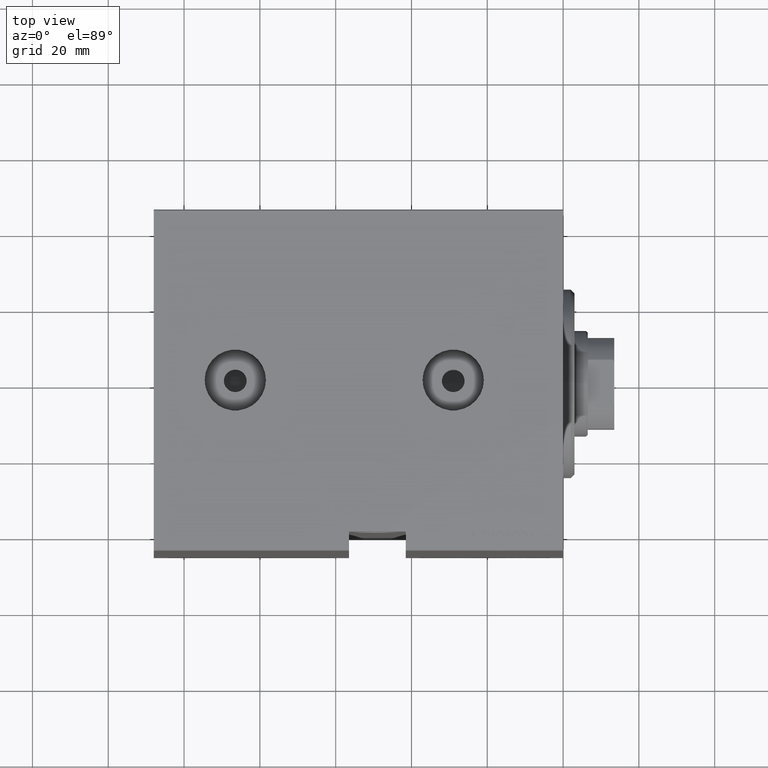
[diagram: clean part render]
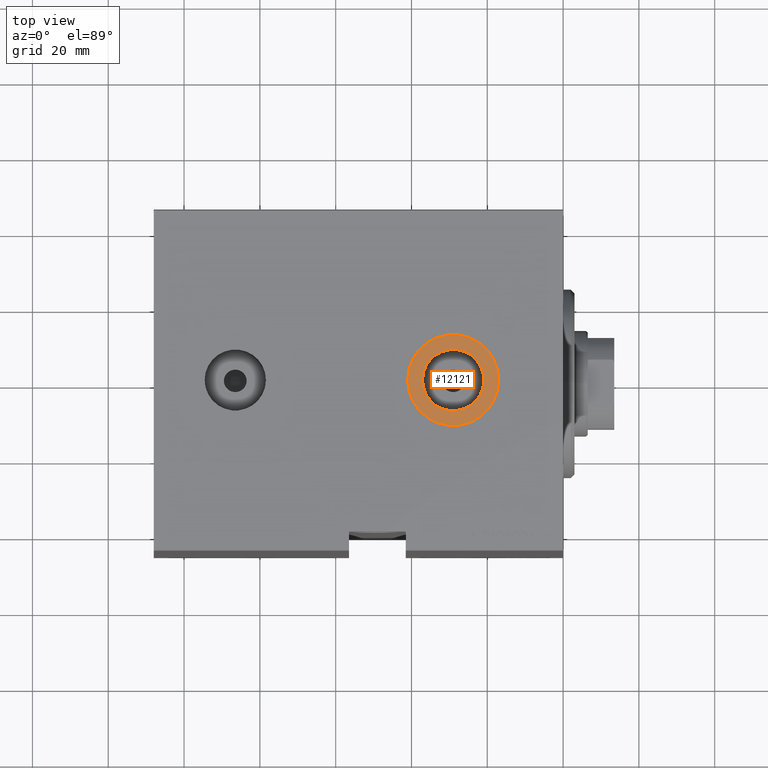
[diagram: same view with one face highlighted and labeled with its STEP entity id]
A machine part, top view. The second image highlights one B-rep face of the part: STEP entity #12121.
In plain terms, the highlighted planar face has unit normal (0, 0, 1).
Its self-contained STEP definition (entity closure, byte-faithful):
#472 = CARTESIAN_POINT ( 'NONE',  ( 29.00000000000000000, -1.329954664915552316E-14, 57.39999999999999858 ) ) ;
#3204 = EDGE_LOOP ( 'NONE', ( #12305, #23888 ) ) ;
#3571 = AXIS2_PLACEMENT_3D ( 'NONE', #41241, #27884, #3600 ) ;
#3590 = DIRECTION ( 'NONE',  ( 1.000000000000000000, 0.000000000000000000, 0.000000000000000000 ) ) ;
#3600 = DIRECTION ( 'NONE',  ( 1.000000000000000000, 0.000000000000000000, -0.000000000000000000 ) ) ;
#7288 = DIRECTION ( 'NONE',  ( 0.000000000000000000, 0.000000000000000000, 1.000000000000000000 ) ) ;
#7508 = DIRECTION ( 'NONE',  ( 1.000000000000000000, 0.000000000000000000, 0.000000000000000000 ) ) ;
#7589 = CIRCLE ( 'NONE', #28936, 8.084999999999999076 ) ;
#8488 = CARTESIAN_POINT ( 'NONE',  ( 41.00000000000000000, -1.329954664915552316E-14, 57.39999999999999858 ) ) ;
#8602 = DIRECTION ( 'NONE',  ( 1.000000000000000000, 0.000000000000000000, 0.000000000000000000 ) ) ;
#9428 = CIRCLE ( 'NONE', #43580, 8.084999999999999076 ) ;
#11020 = CIRCLE ( 'NONE', #19567, 12.00000000000000000 ) ;
#11620 = DIRECTION ( 'NONE',  ( 1.000000000000000000, 0.000000000000000000, 0.000000000000000000 ) ) ;
#12121 = ADVANCED_FACE ( 'NONE', ( #27651, #18085 ), #23882, .T. ) ;
#12305 = ORIENTED_EDGE ( 'NONE', *, *, #20433, .T. ) ;
#15190 = AXIS2_PLACEMENT_3D ( 'NONE', #472, #17843, #3590 ) ;
#15501 = DIRECTION ( 'NONE',  ( 0.000000000000000000, 0.000000000000000000, 1.000000000000000000 ) ) ;
#17843 = DIRECTION ( 'NONE',  ( 0.000000000000000000, 0.000000000000000000, 1.000000000000000000 ) ) ;
#18085 = FACE_OUTER_BOUND ( 'NONE', #3204, .T. ) ;
#19567 = AXIS2_PLACEMENT_3D ( 'NONE', #41602, #7288, #7508 ) ;
#19959 = VERTEX_POINT ( 'NONE', #25737 ) ;
#20433 = EDGE_CURVE ( 'NONE', #35074, #19959, #39370, .T. ) ;
#23882 = PLANE ( 'NONE',  #3571 ) ;
#23888 = ORIENTED_EDGE ( 'NONE', *, *, #25255, .T. ) ;
#25255 = EDGE_CURVE ( 'NONE', #19959, #35074, #11020, .T. ) ;
#25421 = CARTESIAN_POINT ( 'NONE',  ( 29.00000000000000000, -1.329954664915552316E-14, 57.39999999999999858 ) ) ;
#25737 = CARTESIAN_POINT ( 'NONE',  ( 16.99999999999999645, -1.182997049017869981E-14, 57.39999999999999858 ) ) ;
#27651 = FACE_BOUND ( 'NONE', #35284, .T. ) ;
#27707 = EDGE_CURVE ( 'NONE', #29273, #28710, #7589, .T. ) ;
#27884 = DIRECTION ( 'NONE',  ( 0.000000000000000000, 0.000000000000000000, 1.000000000000000000 ) ) ;
#28710 = VERTEX_POINT ( 'NONE', #36215 ) ;
#28936 = AXIS2_PLACEMENT_3D ( 'NONE', #39117, #15501, #8602 ) ;
#29273 = VERTEX_POINT ( 'NONE', #41626 ) ;
#29438 = DIRECTION ( 'NONE',  ( 0.000000000000000000, 0.000000000000000000, 1.000000000000000000 ) ) ;
#34969 = ORIENTED_EDGE ( 'NONE', *, *, #40934, .F. ) ;
#35074 = VERTEX_POINT ( 'NONE', #8488 ) ;
#35284 = EDGE_LOOP ( 'NONE', ( #34969, #42271 ) ) ;
#36215 = CARTESIAN_POINT ( 'NONE',  ( 37.08500000000000085, -1.329954664915552316E-14, 57.39999999999999858 ) ) ;
#39117 = CARTESIAN_POINT ( 'NONE',  ( 29.00000000000000000, -1.329954664915552316E-14, 57.39999999999999858 ) ) ;
#39370 = CIRCLE ( 'NONE', #15190, 12.00000000000000000 ) ;
#40934 = EDGE_CURVE ( 'NONE', #28710, #29273, #9428, .T. ) ;
#41241 = CARTESIAN_POINT ( 'NONE',  ( 29.00000000000000000, -1.329954664915552316E-14, 57.39999999999999858 ) ) ;
#41602 = CARTESIAN_POINT ( 'NONE',  ( 29.00000000000000000, -1.329954664915552316E-14, 57.39999999999999858 ) ) ;
#41626 = CARTESIAN_POINT ( 'NONE',  ( 20.91500000000000270, -1.230941971204488879E-14, 57.39999999999999858 ) ) ;
#42271 = ORIENTED_EDGE ( 'NONE', *, *, #27707, .F. ) ;
#43580 = AXIS2_PLACEMENT_3D ( 'NONE', #25421, #29438, #11620 ) ;